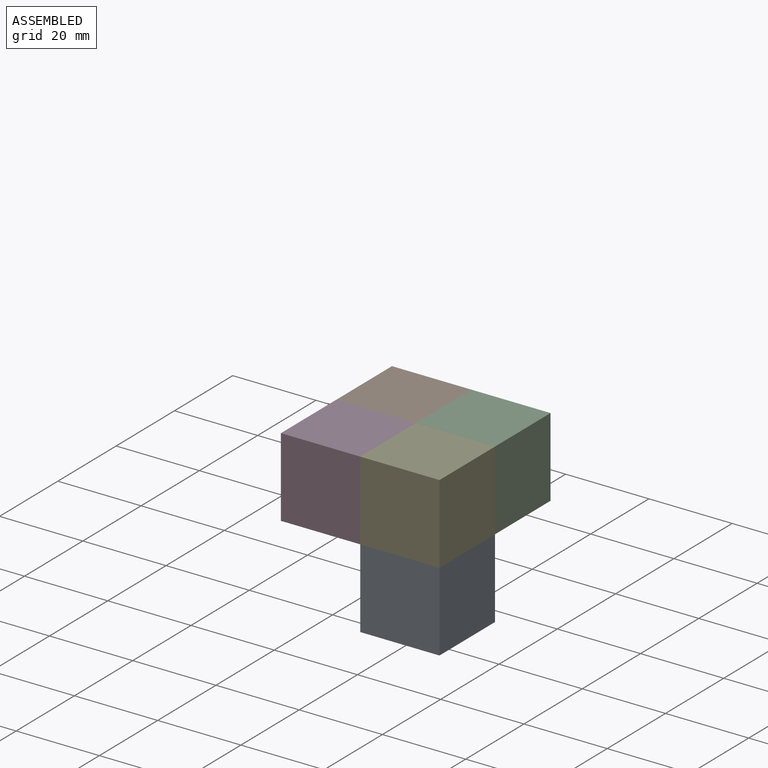
[diagram: assembled view]
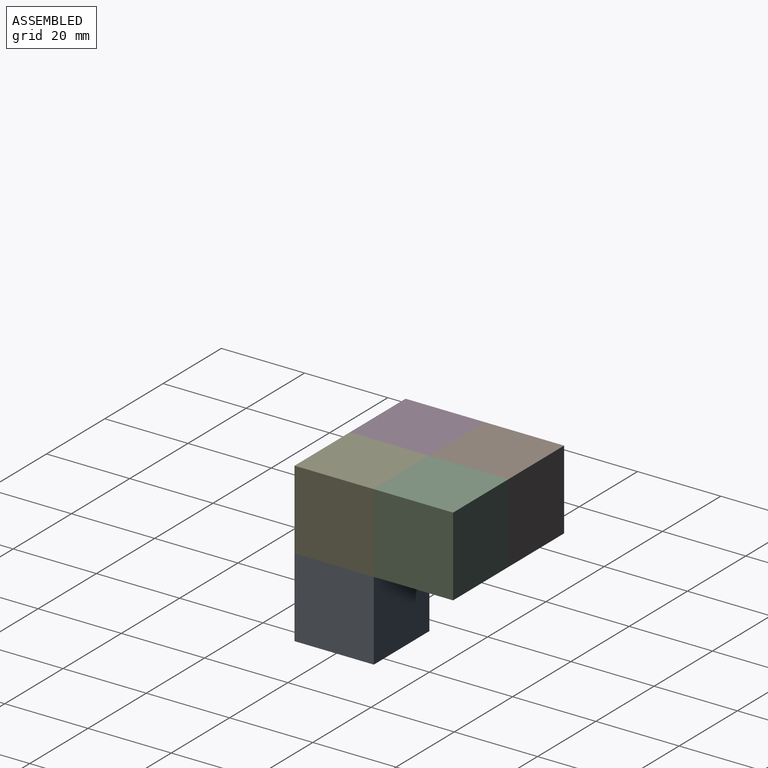
[diagram: assembled view, second angle]
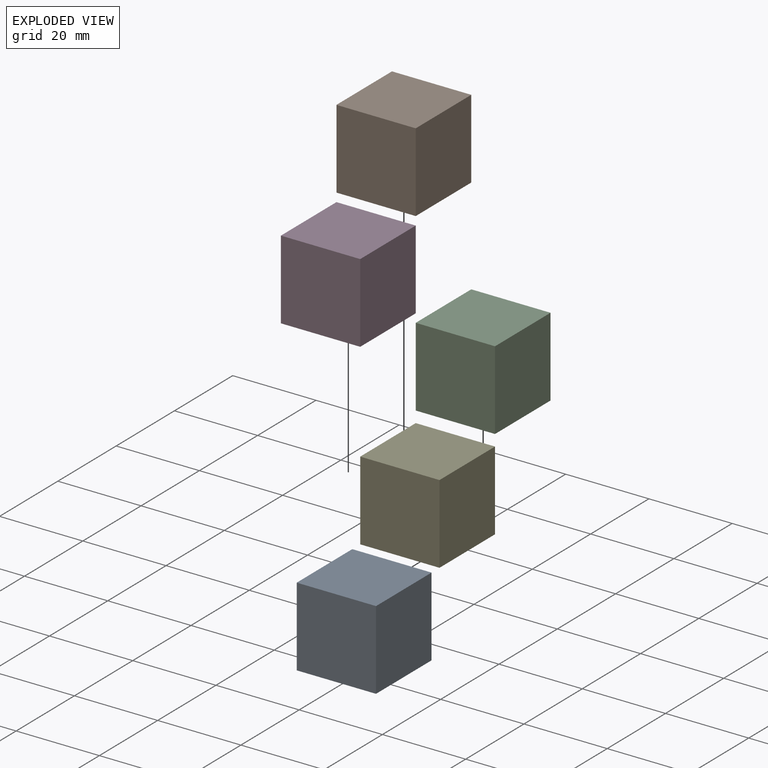
[diagram: exploded view]
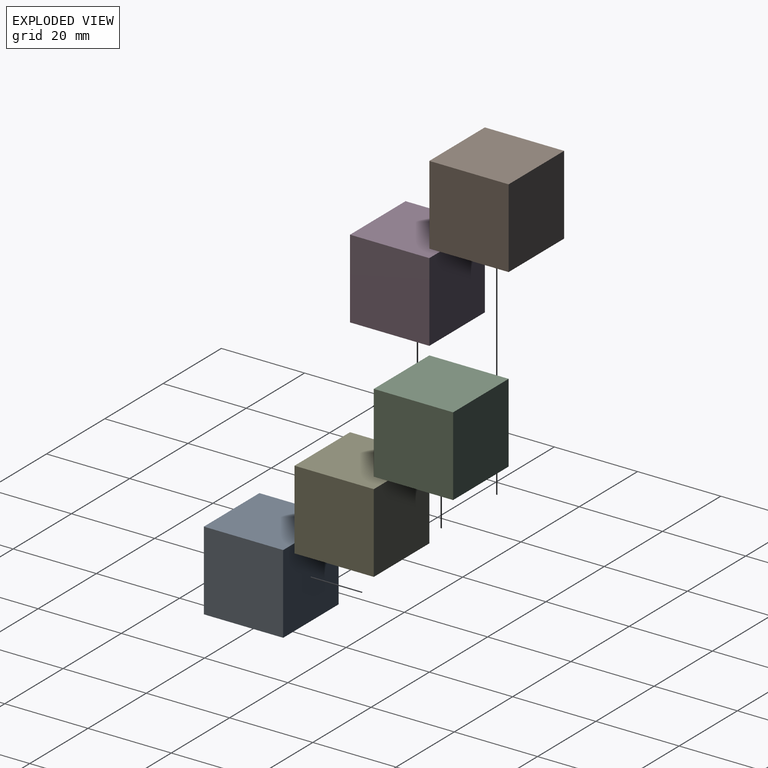
[diagram: exploded view, second angle]
ASSEMBLY  parts=5 mates=4
PART A: 6 faces, bbox 19.1x19.1x19.1 mm
  f0: plane 19.05x19.05mm, normal (0,0,1), area 362.9mm2, adj f1,f3,f4,f5
  f1: plane 19.05x19.05mm, normal (-1,0,0), area 362.9mm2, adj f0,f2,f4,f5
  f2: plane 19.05x19.05mm, normal (0,0,-1), area 362.9mm2, adj f1,f3,f4,f5
  f3: plane 19.05x19.05mm, normal (1,0,0), area 362.9mm2, adj f0,f2,f4,f5
  f4: plane 19.05x19.05mm, normal (0,-1,0), area 362.9mm2, adj f0,f1,f2,f3
  f5: plane 19.05x19.05mm, normal (0,1,0), area 362.9mm2, adj f0,f1,f2,f3
PART B: same geometry as A
PART C: same geometry as A
PART D: same geometry as A
PART E: same geometry as A
PLACE A rot(axis=(-1,0,0),90deg) t=(19.05,-19.05,-19.05)mm
PLACE B t=(0,19.05,0)mm
PLACE C t=(19.05,19.05,0)mm
PLACE D at identity
PLACE E t=(19.05,0,0)mm
MATE fastened C.f0 <-> E.f0  axis (0,0,1) through (19.05,0,19.05)mm
MATE fastened B.f0 <-> C.f0  axis (0,0,1) through (0,0,19.05)mm
MATE fastened E.f4 <-> A.f2  axis (0,-1,0) through (0,-19.05,0)mm
MATE fastened D.f0 <-> E.f0  axis (0,0,1) through (0,0,19.05)mm
